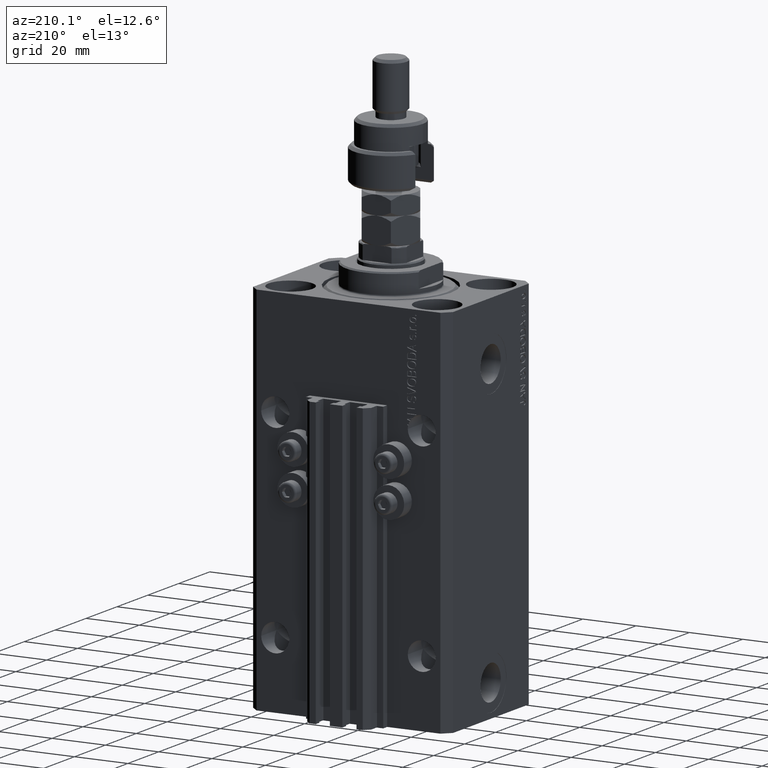
[diagram: clean part render]
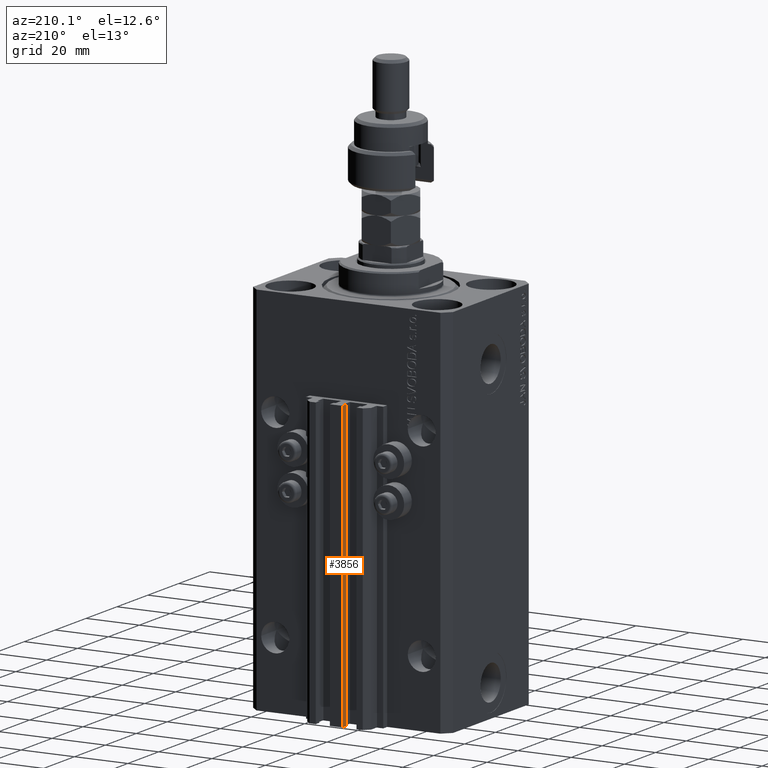
[diagram: same view with one face highlighted and labeled with its STEP entity id]
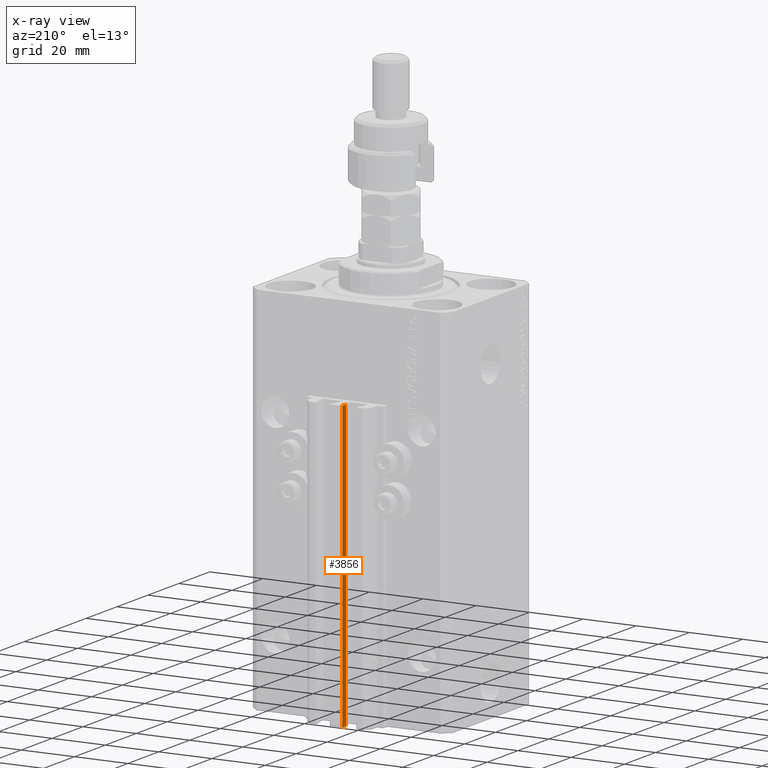
[diagram: x-ray of the same camera — body ghosted, the highlighted face saturated]
A machine part, auxiliary view. The second image highlights one B-rep face of the part: STEP entity #3856.
The next image is the same camera in x-ray: the body ghosted, the highlighted face saturated — about 0% of this face is hidden behind the body in this view.
In plain terms, the highlighted planar face has unit normal (-1, -0, 0).
Its self-contained STEP definition (entity closure, byte-faithful):
#1263 = CARTESIAN_POINT ( 'NONE',  ( -2.350000000000003197, 33.10000000000000853, -140.0000000000000000 ) ) ;
#1973 = VERTEX_POINT ( 'NONE', #12768 ) ;
#2882 = EDGE_CURVE ( 'NONE', #1973, #5739, #17111, .T. ) ;
#3611 = VECTOR ( 'NONE', #17795, 1000.000000000000000 ) ;
#3856 = ADVANCED_FACE ( 'NONE', ( #30512 ), #31000, .T. ) ;
#4627 = ORIENTED_EDGE ( 'NONE', *, *, #2882, .F. ) ;
#5180 = CARTESIAN_POINT ( 'NONE',  ( -2.350000000000003642, 35.50000000000001421, -33.00000000000000000 ) ) ;
#5739 = VERTEX_POINT ( 'NONE', #8817 ) ;
#8817 = CARTESIAN_POINT ( 'NONE',  ( -2.350000000000003197, 33.10000000000000853, -33.00000000000000000 ) ) ;
#10918 = AXIS2_PLACEMENT_3D ( 'NONE', #34065, #49537, #46449 ) ;
#12768 = CARTESIAN_POINT ( 'NONE',  ( -2.350000000000003642, 35.50000000000001421, -33.00000000000000000 ) ) ;
#12808 = DIRECTION ( 'NONE',  ( 1.807003620809174632E-16, -1.000000000000000000, 0.000000000000000000 ) ) ;
#13859 = LINE ( 'NONE', #49089, #27212 ) ;
#17111 = LINE ( 'NONE', #5180, #45696 ) ;
#17467 = VERTEX_POINT ( 'NONE', #23970 ) ;
#17795 = DIRECTION ( 'NONE',  ( 1.807003620809174632E-16, -1.000000000000000000, 0.000000000000000000 ) ) ;
#17995 = ORIENTED_EDGE ( 'NONE', *, *, #24225, .T. ) ;
#20840 = EDGE_CURVE ( 'NONE', #17467, #1973, #22357, .T. ) ;
#22357 = LINE ( 'NONE', #34256, #37321 ) ;
#23970 = CARTESIAN_POINT ( 'NONE',  ( -2.350000000000003642, 35.50000000000001421, -140.0000000000000000 ) ) ;
#24225 = EDGE_CURVE ( 'NONE', #17467, #43900, #41135, .T. ) ;
#27212 = VECTOR ( 'NONE', #33380, 1000.000000000000000 ) ;
#27738 = EDGE_CURVE ( 'NONE', #43900, #5739, #13859, .T. ) ;
#28191 = EDGE_LOOP ( 'NONE', ( #4627, #41118, #17995, #49421 ) ) ;
#30512 = FACE_OUTER_BOUND ( 'NONE', #28191, .T. ) ;
#31000 = PLANE ( 'NONE',  #10918 ) ;
#33380 = DIRECTION ( 'NONE',  ( 0.000000000000000000, 0.000000000000000000, 1.000000000000000000 ) ) ;
#33512 = CARTESIAN_POINT ( 'NONE',  ( -2.350000000000003642, 35.50000000000001421, -140.0000000000000000 ) ) ;
#34065 = CARTESIAN_POINT ( 'NONE',  ( -2.350000000000003642, 35.50000000000001421, -140.0000000000000000 ) ) ;
#34256 = CARTESIAN_POINT ( 'NONE',  ( -2.350000000000003642, 35.50000000000001421, -140.0000000000000000 ) ) ;
#37321 = VECTOR ( 'NONE', #45427, 1000.000000000000000 ) ;
#41118 = ORIENTED_EDGE ( 'NONE', *, *, #20840, .F. ) ;
#41135 = LINE ( 'NONE', #33512, #3611 ) ;
#43900 = VERTEX_POINT ( 'NONE', #1263 ) ;
#45427 = DIRECTION ( 'NONE',  ( 0.000000000000000000, 0.000000000000000000, 1.000000000000000000 ) ) ;
#45696 = VECTOR ( 'NONE', #12808, 1000.000000000000000 ) ;
#46449 = DIRECTION ( 'NONE',  ( 1.807003620809174878E-16, -1.000000000000000000, 0.000000000000000000 ) ) ;
#49089 = CARTESIAN_POINT ( 'NONE',  ( -2.350000000000003197, 33.10000000000000853, -140.0000000000000000 ) ) ;
#49421 = ORIENTED_EDGE ( 'NONE', *, *, #27738, .T. ) ;
#49537 = DIRECTION ( 'NONE',  ( -1.000000000000000000, -1.807003620809174878E-16, 0.000000000000000000 ) ) ;